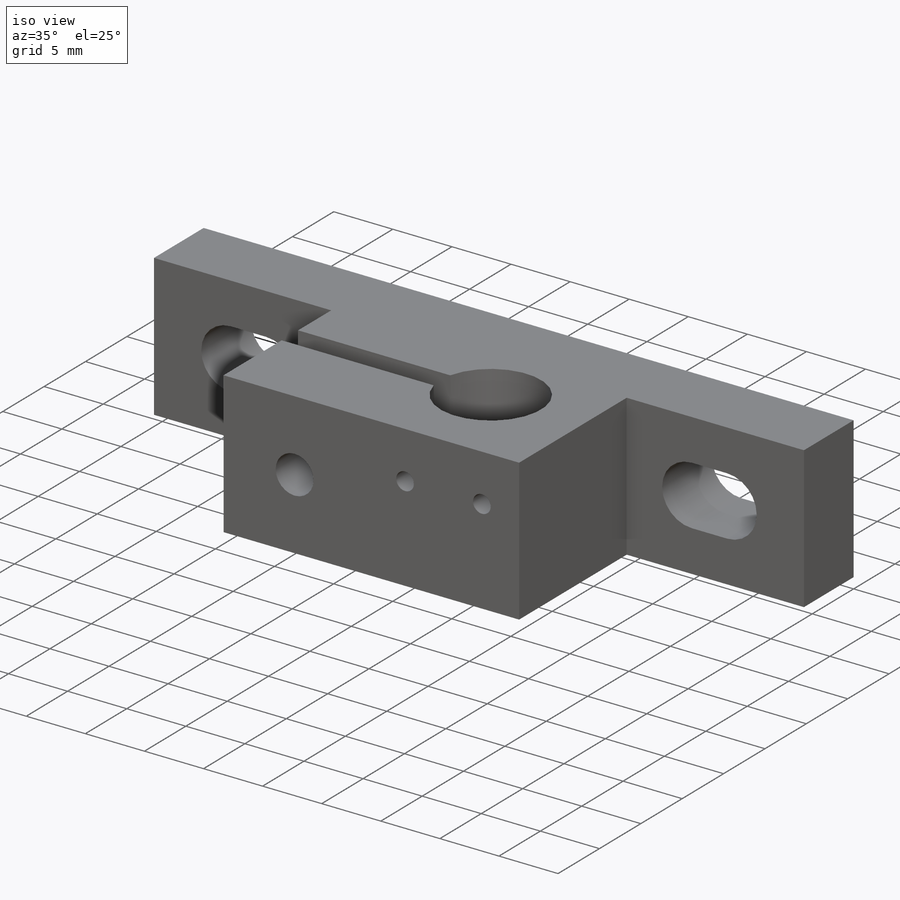
[diagram: iso view]
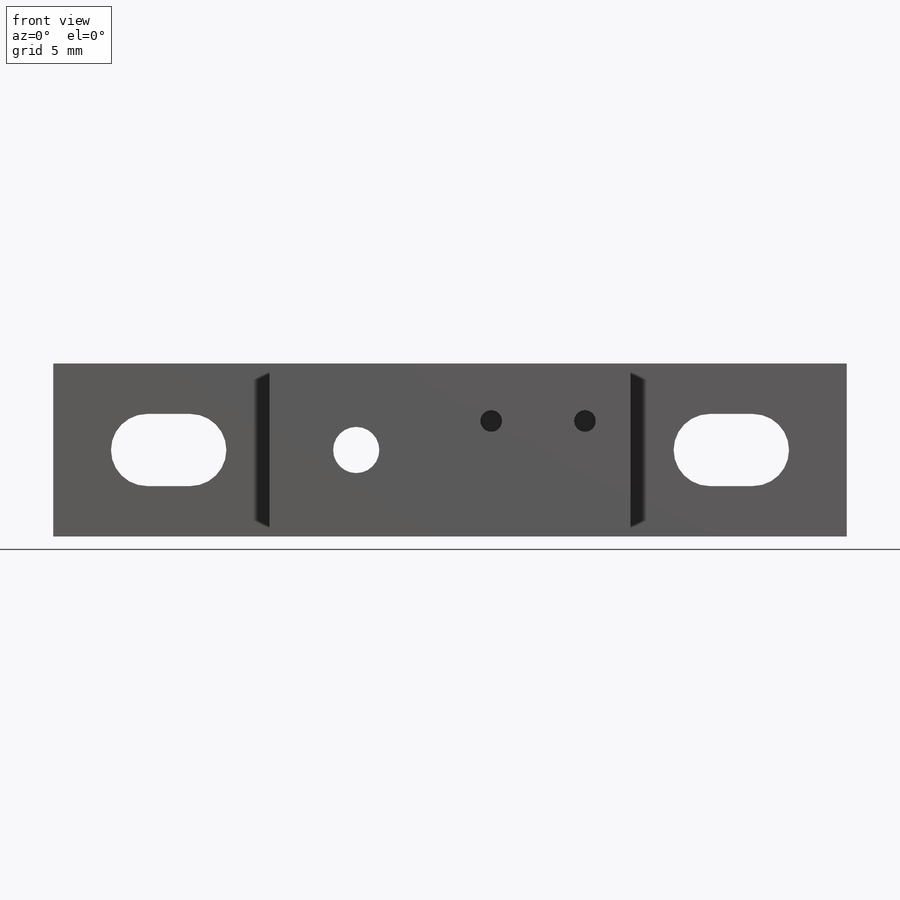
[diagram: front view]
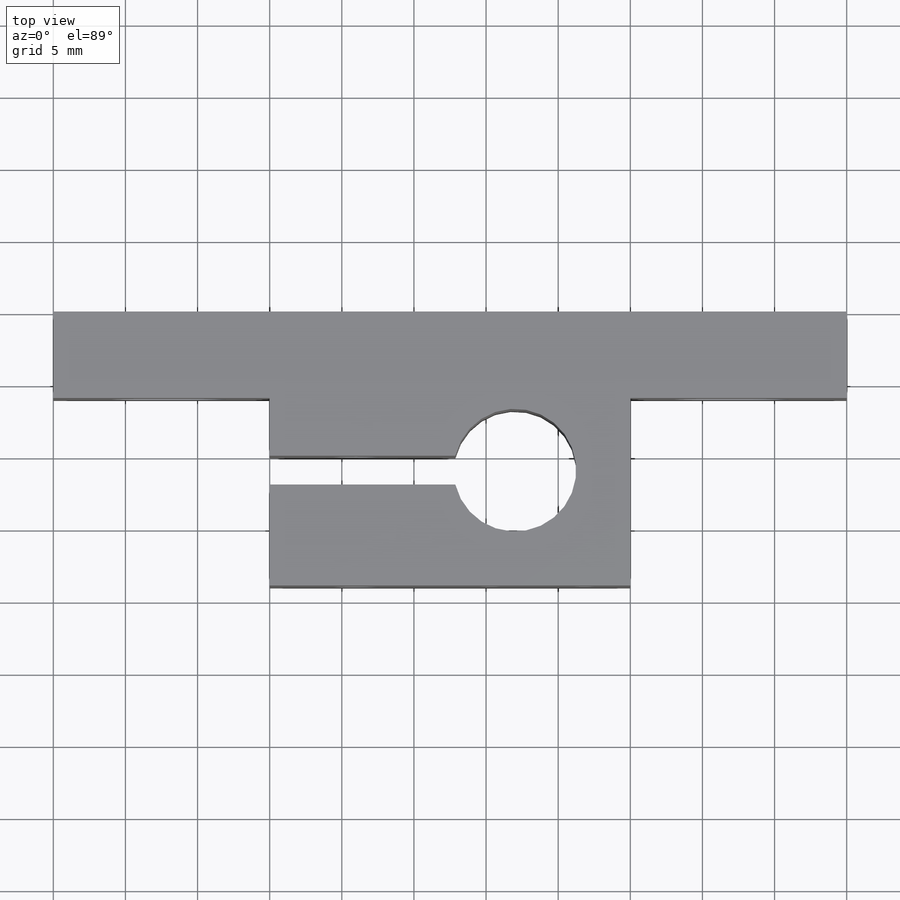
[diagram: top view]
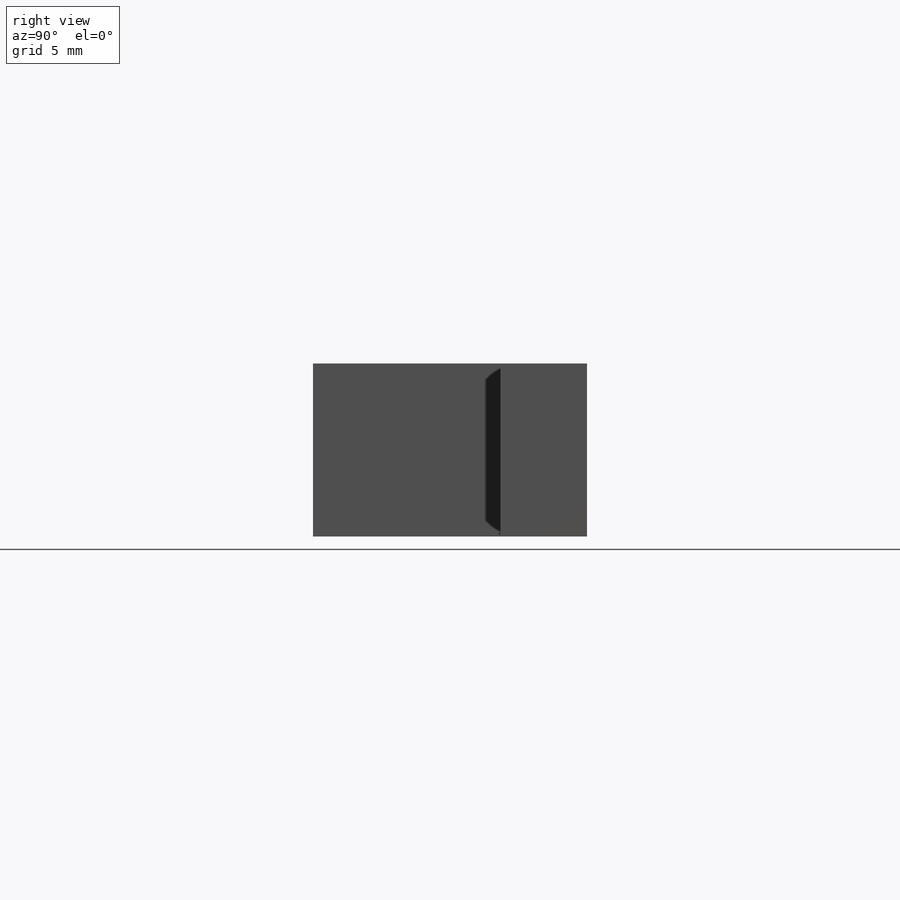
[diagram: right view]
SOLIDWORKS PART (.sldprt)
format: sldprt  version: not decoded by parser v0  size: 299,008 bytes
history: native  units: mm
features: sketch x7, cut_extrude x5, extrude x2, material x1 (+11 scaffold rows collapsed)
feature tree (26):
  scaffold x11  (default folders/planes/origin — collapsed)
  material  "Copper"
  sketch  "Sketch2"  dims[c1.D1=4.5mm c1.D6=~2.348533mm c2.D1=12.0mm c2.D2=45.0mm c3.D1=5.0mm c3.D2=6.0mm c3.D3=5.0mm c3.D4=6.0mm c3.D5=55.0mm c3.D6=3.0mm c4.D1=6.5mm c4.D2=3.0mm c4.D3=~9.751433mm]
  extrude  "Boss-Extrude1"  Depth=6mm
  sketch  "Sketch3"  dims[c1.D1=12.0mm c1.D2=~24.147844mm c2.D1=25.0mm c2.D2=15.0mm c2.D3=15.0mm]
  extrude  "Boss-Extrude2"  Depth=13mm
  sketch  "Sketch4"  dims[c1.D1=8.0mm c1.D5=8.5mm c1.D7=8.0mm c2.D1=8.0mm c2.D2=8.0mm c2.D3=11.0mm c2.D4=~4.537062mm c2.D5=~12.384259mm c3.D4=1.0mm c3.D6=1.0mm c3.D7=11.0mm]
  cut_extrude  "Cut-Extrude2"  Depth=30mm
  sketch  "Sketch5"  dims[c1.D1=~9.589542mm c1.D2=~20.513891mm c2.D1=~20.513891mm c2.D2=2.5mm c2.D3=2.5mm c2.D4=~17.158528mm]
  cut_extrude  "Cut-Extrude3"  Depth=5mm
  sketch  "Sketch6"  dims[D1=6.0mm D2=6.0mm D3=6.0mm]
  cut_extrude  "Cut-Extrude4"  Depth=11mm
  sketch  "Sketch7"
  cut_extrude  "Cut-Extrude5"  Depth=3mm
  sketch  "Sketch8"  dims[c1.D1=1.5mm c1.D2=1.5mm c1.D3=1.5mm c2.D2=3.15mm c2.D3=4.0mm c2.D4=2.0]
  cut_extrude  "Cut-Extrude6"  Depth=3mm
decode coverage: 13 of 14 modeling features carry decoded parameters
note: ~ marks probable driven/reference dimensions
note: suppression state not decoded; provenance and decode notes live in map.json
